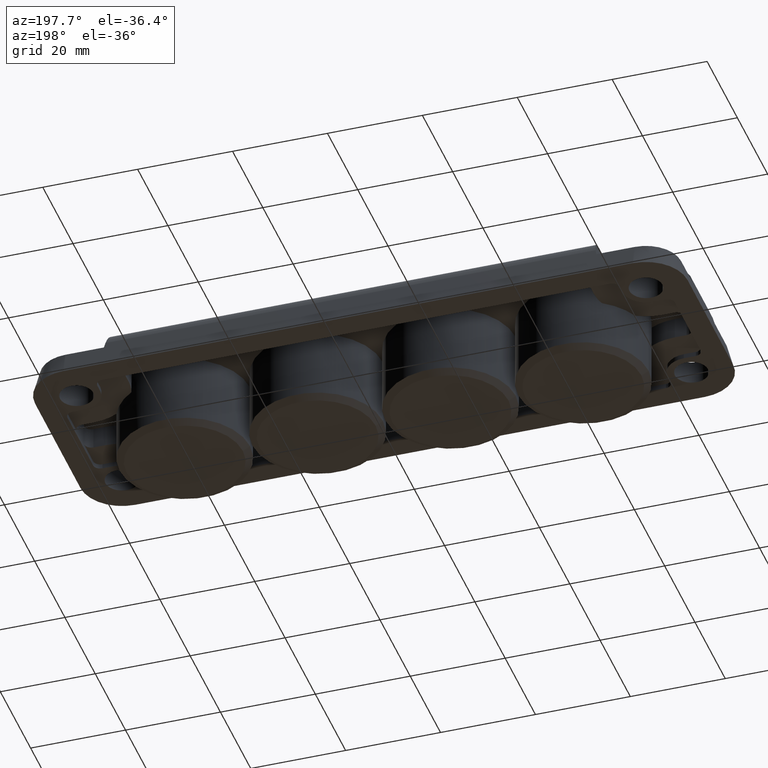
[diagram: clean part render]
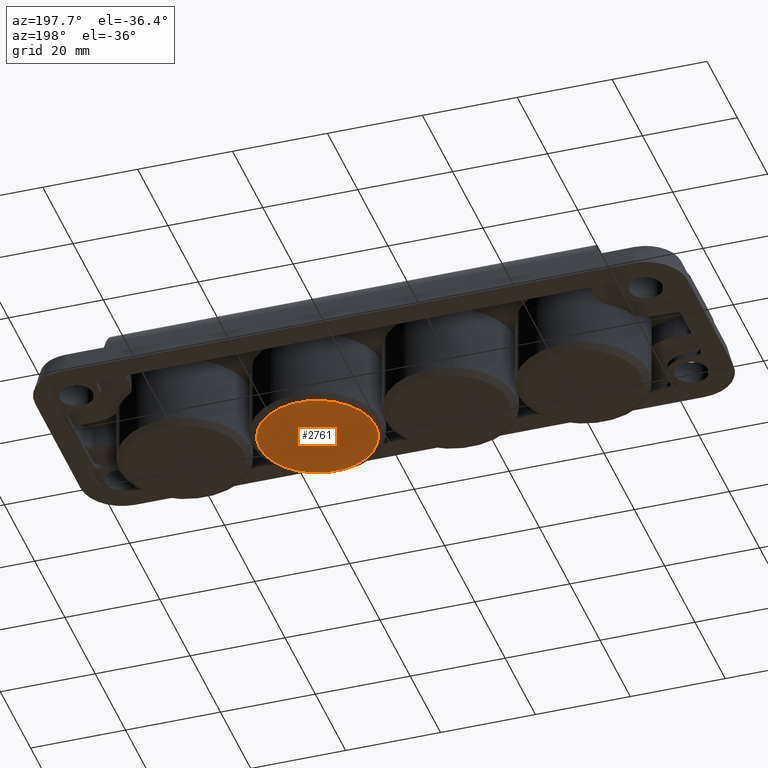
[diagram: same view with one face highlighted and labeled with its STEP entity id]
A machine part, auxiliary view. The second image highlights one B-rep face of the part: STEP entity #2761.
In plain terms, the highlighted planar face has unit normal (-0, 0, -1).
Its self-contained STEP definition (entity closure, byte-faithful):
#98 = CARTESIAN_POINT ( 'NONE',  ( 26.24999999999998600, -1.328571821804666600E-031, -10.00000000000000000 ) ) ;
#181 = CARTESIAN_POINT ( 'NONE',  ( 13.99999999999999600, -1.328571821804666600E-031, -10.00000000000000000 ) ) ;
#234 = DIRECTION ( 'NONE',  ( -0.0000000000000000000, -0.0000000000000000000, -1.000000000000000000 ) ) ;
#247 = AXIS2_PLACEMENT_3D ( 'NONE', #3173, #1608, #1303 ) ;
#536 = EDGE_CURVE ( 'NONE', #1106, #3411, #828, .T. ) ;
#786 = EDGE_CURVE ( 'NONE', #3411, #1106, #2624, .T. ) ;
#828 = CIRCLE ( 'NONE', #3754, 12.24999999999998800 ) ;
#941 = AXIS2_PLACEMENT_3D ( 'NONE', #181, #234, #3621 ) ;
#1106 = VERTEX_POINT ( 'NONE', #98 ) ;
#1303 = DIRECTION ( 'NONE',  ( -1.000000000000000000, 0.0000000000000000000, 0.0000000000000000000 ) ) ;
#1310 = CARTESIAN_POINT ( 'NONE',  ( 13.99999999999999600, -1.328571821804666600E-031, -10.00000000000000000 ) ) ;
#1510 = FACE_OUTER_BOUND ( 'NONE', #2464, .T. ) ;
#1580 = ORIENTED_EDGE ( 'NONE', *, *, #536, .T. ) ;
#1584 = PLANE ( 'NONE',  #247 ) ;
#1608 = DIRECTION ( 'NONE',  ( -0.0000000000000000000, 0.0000000000000000000, -1.000000000000000000 ) ) ;
#1910 = DIRECTION ( 'NONE',  ( -0.0000000000000000000, -0.0000000000000000000, -1.000000000000000000 ) ) ;
#2464 = EDGE_LOOP ( 'NONE', ( #1580, #4042 ) ) ;
#2615 = CARTESIAN_POINT ( 'NONE',  ( 1.750000000000008400, 1.592040838891558300E-015, -10.00000000000000000 ) ) ;
#2624 = CIRCLE ( 'NONE', #941, 12.24999999999998800 ) ;
#2761 = ADVANCED_FACE ( 'NONE', ( #1510 ), #1584, .T. ) ;
#3173 = CARTESIAN_POINT ( 'NONE',  ( -60.00000000000000700, 14.99999999999999300, -10.00000000000000000 ) ) ;
#3411 = VERTEX_POINT ( 'NONE', #2615 ) ;
#3509 = DIRECTION ( 'NONE',  ( -1.000000000000000000, 0.0000000000000000000, 0.0000000000000000000 ) ) ;
#3621 = DIRECTION ( 'NONE',  ( -1.000000000000000000, 0.0000000000000000000, 0.0000000000000000000 ) ) ;
#3754 = AXIS2_PLACEMENT_3D ( 'NONE', #1310, #1910, #3509 ) ;
#4042 = ORIENTED_EDGE ( 'NONE', *, *, #786, .T. ) ;